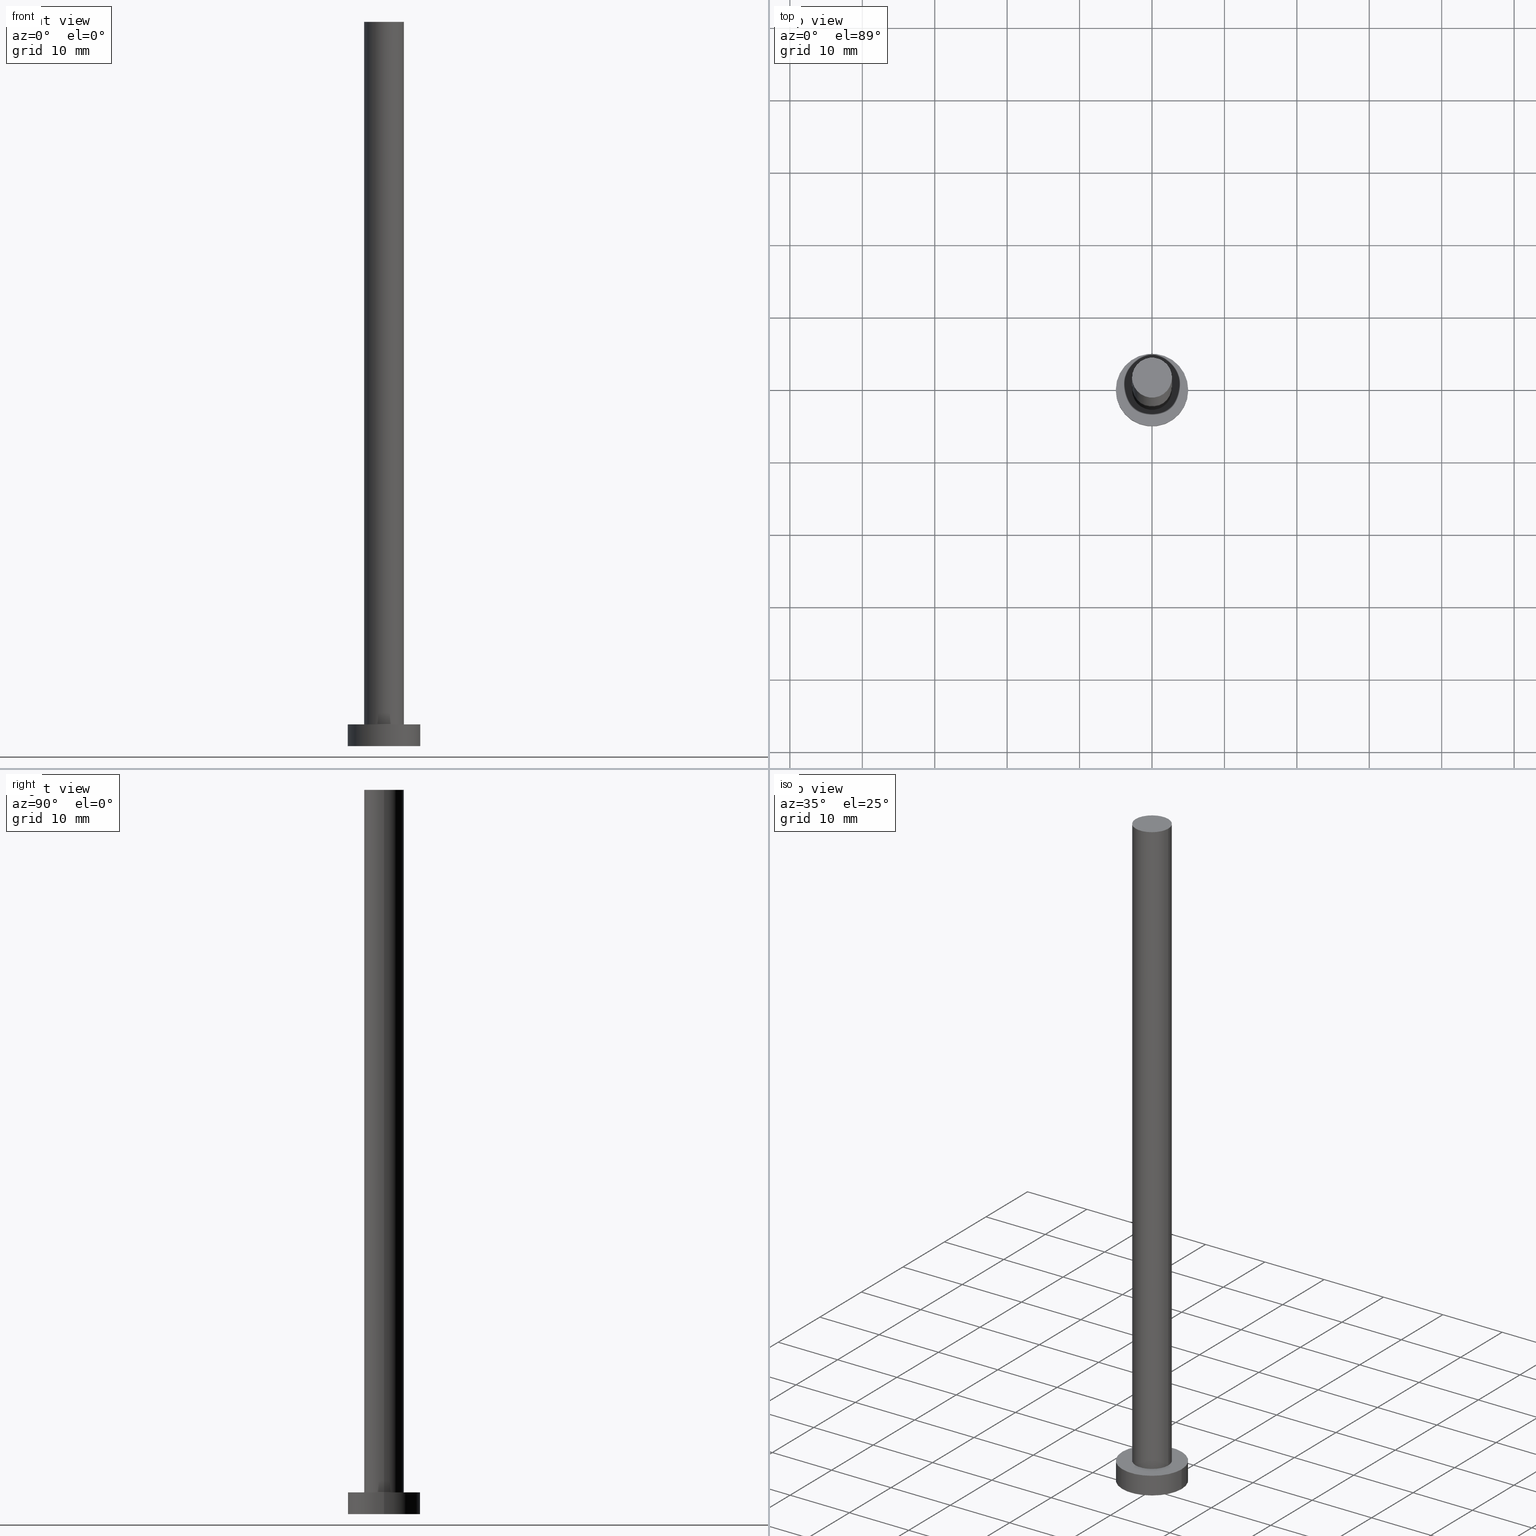
[diagram: canonical four-view strip — front | top / right | iso, engineering-drawing reading convention]
A machine part, canonical four-view strip (front | top / right | iso — engineering-drawing reading convention). The complete STEP part file that produces these views, byte-faithful:
ISO-10303-21;
HEADER;
FILE_DESCRIPTION (( 'STEP AP203' ),
    '1' );
FILE_NAME ('b51b.STEP',
    '2023-02-13T13:23:27',
    ( '' ),
    ( '' ),
    'SwSTEP 2.0',
    'SolidWorks 2019',
    '' );
FILE_SCHEMA (( 'CONFIG_CONTROL_DESIGN' ));
ENDSEC;

DATA;
#1 = FACE_OUTER_BOUND ( 'NONE', #43, .T. ) ;
#2 = PERSON_AND_ORGANIZATION ( #39, #182 ) ;
#3 = EDGE_LOOP ( 'NONE', ( #229, #173 ) ) ;
#4 = AXIS2_PLACEMENT_3D ( 'NONE', #221, #6, #237 ) ;
#5 = APPROVAL ( #249, 'NEUR�EN�' ) ;
#6 = DIRECTION ( 'NONE',  ( 0.000000000000000000, 0.000000000000000000, 1.000000000000000000 ) ) ;
#7 = CARTESIAN_POINT ( 'NONE',  ( 0.000000000000000000, 0.000000000000000000, 3.000000000000000000 ) ) ;
#8 = EDGE_CURVE ( 'NONE', #35, #216, #79, .T. ) ;
#9 = DIRECTION ( 'NONE',  ( 1.000000000000000000, 0.000000000000000000, 0.000000000000000000 ) ) ;
#10 = PERSON_AND_ORGANIZATION_ROLE ( 'design_owner' ) ;
#11 = AXIS2_PLACEMENT_3D ( 'NONE', #236, #238, #64 ) ;
#12 = AXIS2_PLACEMENT_3D ( 'NONE', #128, #248, #53 ) ;
#13 = EDGE_LOOP ( 'NONE', ( #38, #239 ) ) ;
#14 = DIRECTION ( 'NONE',  ( -1.000000000000000000, 0.000000000000000000, 0.000000000000000000 ) ) ;
#15 = ORIENTED_EDGE ( 'NONE', *, *, #232, .F. ) ;
#16 = APPROVAL_ROLE ( '' ) ;
#17 = CYLINDRICAL_SURFACE ( 'NONE', #32, 5.000000000000000000 ) ;
#18 = LINE ( 'NONE', #24, #226 ) ;
#19 = DIRECTION ( 'NONE',  ( 1.000000000000000000, 0.000000000000000000, -0.000000000000000000 ) ) ;
#20 = EDGE_CURVE ( 'NONE', #125, #81, #55, .T. ) ;
#21 = VECTOR ( 'NONE', #66, 1000.000000000000000 ) ;
#22 = MANIFOLD_SOLID_BREP ( 'P�idat vysunut�m3', #192 ) ;
#23 = SECURITY_CLASSIFICATION_LEVEL ( 'unclassified' ) ;
#24 = CARTESIAN_POINT ( 'NONE',  ( 5.000000000000000000, 6.123233995736766282E-16, 3.000000000000000000 ) ) ;
#25 = LINE ( 'NONE', #212, #89 ) ;
#26 = CC_DESIGN_PERSON_AND_ORGANIZATION_ASSIGNMENT ( #85, #168, ( #157 ) ) ;
#27 = DATE_AND_TIME ( #213, #114 ) ;
#28 = ADVANCED_BREP_SHAPE_REPRESENTATION ( 'b51b', ( #22, #4 ), #139 ) ;
#29 = DIRECTION ( 'NONE',  ( 1.000000000000000000, 0.000000000000000000, 0.000000000000000000 ) ) ;
#30 = PLANE ( 'NONE',  #112 ) ;
#31 = DIRECTION ( 'NONE',  ( -1.000000000000000000, 0.000000000000000000, 0.000000000000000000 ) ) ;
#32 = AXIS2_PLACEMENT_3D ( 'NONE', #251, #150, #52 ) ;
#33 = EDGE_CURVE ( 'NONE', #224, #81, #25, .T. ) ;
#34 = EDGE_LOOP ( 'NONE', ( #111, #63 ) ) ;
#35 = VERTEX_POINT ( 'NONE', #44 ) ;
#36 = DIRECTION ( 'NONE',  ( 0.000000000000000000, 0.000000000000000000, 1.000000000000000000 ) ) ;
#37 = AXIS2_PLACEMENT_3D ( 'NONE', #102, #215, #119 ) ;
#38 = ORIENTED_EDGE ( 'NONE', *, *, #50, .F. ) ;
#39 = PERSON ( 'NEUR�EN�', 'NEUR�EN�', 'NEUR�EN�', ('NEUR�EN�'), ('NEUR�EN�'), ('NEUR�EN�') ) ;
#40 = AXIS2_PLACEMENT_3D ( 'NONE', #179, #195, #29 ) ;
#41 = CARTESIAN_POINT ( 'NONE',  ( 0.000000000000000000, 0.000000000000000000, 3.000000000000000000 ) ) ;
#42 = APPROVAL_PERSON_ORGANIZATION ( #60, #98, #65 ) ;
#43 = EDGE_LOOP ( 'NONE', ( #130, #156, #120, #142 ) ) ;
#44 = CARTESIAN_POINT ( 'NONE',  ( 2.750000000000000000, 3.367778697655220519E-16, 3.000000000000000000 ) ) ;
#45 = CC_DESIGN_PERSON_AND_ORGANIZATION_ASSIGNMENT ( #56, #194, ( #146 ) ) ;
#46 = CARTESIAN_POINT ( 'NONE',  ( 0.000000000000000000, 0.000000000000000000, 3.000000000000000000 ) ) ;
#47 = ORIENTED_EDGE ( 'NONE', *, *, #87, .T. ) ;
#48 = APPROVAL_DATE_TIME ( #222, #98 ) ;
#49 = EDGE_LOOP ( 'NONE', ( #47, #151 ) ) ;
#50 = EDGE_CURVE ( 'NONE', #81, #125, #134, .T. ) ;
#51 = CARTESIAN_POINT ( 'NONE',  ( 2.750000000000000000, 3.367778697655220519E-16, 100.0000000000000000 ) ) ;
#52 = DIRECTION ( 'NONE',  ( -1.000000000000000000, 0.000000000000000000, 0.000000000000000000 ) ) ;
#53 = DIRECTION ( 'NONE',  ( 1.000000000000000000, 0.000000000000000000, 0.000000000000000000 ) ) ;
#54 = ADVANCED_FACE ( 'NONE', ( #62 ), #196, .T. ) ;
#55 = CIRCLE ( 'NONE', #40, 5.000000000000000000 ) ;
#56 = PERSON_AND_ORGANIZATION ( #39, #182 ) ;
#57 = PERSON_AND_ORGANIZATION_ROLE ( 'creator' ) ;
#58 = DIRECTION ( 'NONE',  ( 0.000000000000000000, 0.000000000000000000, 1.000000000000000000 ) ) ;
#59 = PERSON_AND_ORGANIZATION_ROLE ( 'classification_officer' ) ;
#60 = PERSON_AND_ORGANIZATION ( #39, #182 ) ;
#61 = PRODUCT_DEFINITION_SHAPE ( 'NONE', 'NONE',  #157 ) ;
#62 = FACE_OUTER_BOUND ( 'NONE', #253, .T. ) ;
#63 = ORIENTED_EDGE ( 'NONE', *, *, #8, .F. ) ;
#64 = DIRECTION ( 'NONE',  ( -1.000000000000000000, 0.000000000000000000, 0.000000000000000000 ) ) ;
#65 = APPROVAL_ROLE ( '' ) ;
#66 = DIRECTION ( 'NONE',  ( -0.000000000000000000, -0.000000000000000000, -1.000000000000000000 ) ) ;
#67 = COORDINATED_UNIVERSAL_TIME_OFFSET ( 1, 0, .AHEAD. ) ;
#68 = CC_DESIGN_PERSON_AND_ORGANIZATION_ASSIGNMENT ( #138, #10, ( #100 ) ) ;
#69 = COORDINATED_UNIVERSAL_TIME_OFFSET ( 1, 0, .AHEAD. ) ;
#70 = EDGE_CURVE ( 'NONE', #103, #125, #18, .T. ) ;
#71 = APPROVAL_PERSON_ORGANIZATION ( #110, #5, #187 ) ;
#72 = FACE_OUTER_BOUND ( 'NONE', #49, .T. ) ;
#73 = ORIENTED_EDGE ( 'NONE', *, *, #87, .F. ) ;
#74 = CARTESIAN_POINT ( 'NONE',  ( 0.000000000000000000, 0.000000000000000000, 100.0000000000000000 ) ) ;
#75 = CYLINDRICAL_SURFACE ( 'NONE', #233, 2.750000000000000000 ) ;
#76 = ADVANCED_FACE ( 'NONE', ( #96, #180 ), #30, .T. ) ;
#77 = EDGE_LOOP ( 'NONE', ( #189, #145, #220, #104 ) ) ;
#78 = DIRECTION ( 'NONE',  ( 1.000000000000000000, 0.000000000000000000, -0.000000000000000000 ) ) ;
#79 = CIRCLE ( 'NONE', #245, 2.750000000000000000 ) ;
#80 = AXIS2_PLACEMENT_3D ( 'NONE', #7, #219, #183 ) ;
#81 = VERTEX_POINT ( 'NONE', #155 ) ;
#82 = ADVANCED_FACE ( 'NONE', ( #1 ), #75, .T. ) ;
#83 = APPLICATION_PROTOCOL_DEFINITION ( 'international standard', 'config_control_design', 1994, #149 ) ;
#84 = DIRECTION ( 'NONE',  ( 0.000000000000000000, 0.000000000000000000, 1.000000000000000000 ) ) ;
#85 = PERSON_AND_ORGANIZATION ( #39, #182 ) ;
#86 = APPROVAL_PERSON_ORGANIZATION ( #204, #197, #16 ) ;
#87 = EDGE_CURVE ( 'NONE', #200, #147, #143, .T. ) ;
#88 = DIRECTION ( 'NONE',  ( 0.000000000000000000, 0.000000000000000000, 1.000000000000000000 ) ) ;
#89 = VECTOR ( 'NONE', #158, 1000.000000000000000 ) ;
#90 = DATE_AND_TIME ( #171, #172 ) ;
#91 = AXIS2_PLACEMENT_3D ( 'NONE', #46, #163, #105 ) ;
#92 = CARTESIAN_POINT ( 'NONE',  ( 2.750000000000000000, 3.367778697655220519E-16, 100.0000000000000000 ) ) ;
#93 = APPROVAL_DATE_TIME ( #209, #197 ) ;
#94 =( NAMED_UNIT ( * ) PLANE_ANGLE_UNIT ( ) SI_UNIT ( $, .RADIAN. ) );
#95 = CC_DESIGN_DATE_AND_TIME_ASSIGNMENT ( #90, #129, ( #157 ) ) ;
#96 = FACE_BOUND ( 'NONE', #34, .T. ) ;
#97 = CARTESIAN_POINT ( 'NONE',  ( -2.750000000000000000, 0.000000000000000000, 100.0000000000000000 ) ) ;
#98 = APPROVAL ( #106, 'NEUR�EN�' ) ;
#99 = CC_DESIGN_APPROVAL ( #197, ( #146 ) ) ;
#100 = PRODUCT ( 'b51b', 'b51b', '', ( #240 ) ) ;
#101 = ORIENTED_EDGE ( 'NONE', *, *, #185, .T. ) ;
#102 = CARTESIAN_POINT ( 'NONE',  ( 0.000000000000000000, 0.000000000000000000, 0.000000000000000000 ) ) ;
#103 = VERTEX_POINT ( 'NONE', #141 ) ;
#104 = ORIENTED_EDGE ( 'NONE', *, *, #50, .T. ) ;
#105 = DIRECTION ( 'NONE',  ( 1.000000000000000000, 0.000000000000000000, 0.000000000000000000 ) ) ;
#106 = APPROVAL_STATUS ( 'not_yet_approved' ) ;
#107 = PLANE ( 'NONE',  #188 ) ;
#108 = APPROVAL_STATUS ( 'not_yet_approved' ) ;
#109 = LOCAL_TIME ( 14, 23, 27.00000000000000000, #186 ) ;
#110 = PERSON_AND_ORGANIZATION ( #39, #182 ) ;
#111 = ORIENTED_EDGE ( 'NONE', *, *, #185, .F. ) ;
#112 = AXIS2_PLACEMENT_3D ( 'NONE', #199, #58, #78 ) ;
#113 = CARTESIAN_POINT ( 'NONE',  ( 0.000000000000000000, 0.000000000000000000, 3.000000000000000000 ) ) ;
#114 = LOCAL_TIME ( 14, 23, 27.00000000000000000, #136 ) ;
#115 = DIRECTION ( 'NONE',  ( -0.000000000000000000, -0.000000000000000000, -1.000000000000000000 ) ) ;
#116 = ORIENTED_EDGE ( 'NONE', *, *, #33, .F. ) ;
#117 = PERSON_AND_ORGANIZATION ( #39, #182 ) ;
#118 = AXIS2_PLACEMENT_3D ( 'NONE', #243, #84, #159 ) ;
#119 = DIRECTION ( 'NONE',  ( 1.000000000000000000, 0.000000000000000000, 0.000000000000000000 ) ) ;
#120 = ORIENTED_EDGE ( 'NONE', *, *, #8, .T. ) ;
#121 = DIRECTION ( 'NONE',  ( -0.000000000000000000, -0.000000000000000000, -1.000000000000000000 ) ) ;
#122 = SHAPE_DEFINITION_REPRESENTATION ( #61, #28 ) ;
#123 = CARTESIAN_POINT ( 'NONE',  ( -2.750000000000000000, 0.000000000000000000, 100.0000000000000000 ) ) ;
#124 = CARTESIAN_POINT ( 'NONE',  ( 0.000000000000000000, 0.000000000000000000, 0.000000000000000000 ) ) ;
#125 = VERTEX_POINT ( 'NONE', #223 ) ;
#126 = CIRCLE ( 'NONE', #12, 2.750000000000000000 ) ;
#127 = ADVANCED_FACE ( 'NONE', ( #225 ), #107, .F. ) ;
#128 = CARTESIAN_POINT ( 'NONE',  ( 0.000000000000000000, 0.000000000000000000, 100.0000000000000000 ) ) ;
#129 = DATE_TIME_ROLE ( 'creation_date' ) ;
#130 = ORIENTED_EDGE ( 'NONE', *, *, #242, .F. ) ;
#131 = CIRCLE ( 'NONE', #91, 5.000000000000000000 ) ;
#132 = CALENDAR_DATE ( 2023, 13, 2 ) ;
#133 = DIRECTION ( 'NONE',  ( -0.000000000000000000, -0.000000000000000000, -1.000000000000000000 ) ) ;
#134 = CIRCLE ( 'NONE', #37, 5.000000000000000000 ) ;
#135 = CIRCLE ( 'NONE', #218, 5.000000000000000000 ) ;
#136 = COORDINATED_UNIVERSAL_TIME_OFFSET ( 1, 0, .AHEAD. ) ;
#137 = DIRECTION ( 'NONE',  ( -0.000000000000000000, -0.000000000000000000, -1.000000000000000000 ) ) ;
#138 = PERSON_AND_ORGANIZATION ( #39, #182 ) ;
#139 =( GEOMETRIC_REPRESENTATION_CONTEXT ( 3 ) GLOBAL_UNCERTAINTY_ASSIGNED_CONTEXT ( ( #203 ) ) GLOBAL_UNIT_ASSIGNED_CONTEXT ( ( #184, #94, #201 ) ) REPRESENTATION_CONTEXT ( 'NONE', 'WORKASPACE' ) );
#140 = CC_DESIGN_DATE_AND_TIME_ASSIGNMENT ( #27, #235, ( #148 ) ) ;
#141 = CARTESIAN_POINT ( 'NONE',  ( 5.000000000000000000, 6.123233995736766282E-16, 3.000000000000000000 ) ) ;
#142 = ORIENTED_EDGE ( 'NONE', *, *, #144, .F. ) ;
#143 = CIRCLE ( 'NONE', #118, 2.750000000000000000 ) ;
#144 = EDGE_CURVE ( 'NONE', #200, #216, #174, .T. ) ;
#145 = ORIENTED_EDGE ( 'NONE', *, *, #214, .F. ) ;
#146 = PRODUCT_DEFINITION_FORMATION_WITH_SPECIFIED_SOURCE ( 'LIBOVOLN�', '', #100, .NOT_KNOWN. ) ;
#147 = VERTEX_POINT ( 'NONE', #92 ) ;
#148 = SECURITY_CLASSIFICATION ( '', '', #23 ) ;
#149 = APPLICATION_CONTEXT ( 'configuration controlled 3d designs of mechanical parts and assemblies' ) ;
#150 = DIRECTION ( 'NONE',  ( -0.000000000000000000, -0.000000000000000000, -1.000000000000000000 ) ) ;
#151 = ORIENTED_EDGE ( 'NONE', *, *, #242, .T. ) ;
#152 = PRODUCT_RELATED_PRODUCT_CATEGORY ( 'detail', '', ( #100 ) ) ;
#153 = FACE_OUTER_BOUND ( 'NONE', #206, .T. ) ;
#154 = CARTESIAN_POINT ( 'NONE',  ( 0.000000000000000000, 0.000000000000000000, 100.0000000000000000 ) ) ;
#155 = CARTESIAN_POINT ( 'NONE',  ( -5.000000000000000000, 0.000000000000000000, 0.000000000000000000 ) ) ;
#156 = ORIENTED_EDGE ( 'NONE', *, *, #232, .T. ) ;
#157 = PRODUCT_DEFINITION ( 'NEZN�M�', '', #146, #169 ) ;
#158 = DIRECTION ( 'NONE',  ( -0.000000000000000000, -0.000000000000000000, -1.000000000000000000 ) ) ;
#159 = DIRECTION ( 'NONE',  ( 1.000000000000000000, 0.000000000000000000, 0.000000000000000000 ) ) ;
#160 = LINE ( 'NONE', #51, #21 ) ;
#161 = APPLICATION_CONTEXT ( 'configuration controlled 3d designs of mechanical parts and assemblies' ) ;
#162 = CARTESIAN_POINT ( 'NONE',  ( -5.000000000000000000, 0.000000000000000000, 3.000000000000000000 ) ) ;
#163 = DIRECTION ( 'NONE',  ( 0.000000000000000000, 0.000000000000000000, 1.000000000000000000 ) ) ;
#164 = APPROVAL_DATE_TIME ( #231, #5 ) ;
#165 = AXIS2_PLACEMENT_3D ( 'NONE', #113, #121, #31 ) ;
#166 = FACE_OUTER_BOUND ( 'NONE', #77, .T. ) ;
#167 = CC_DESIGN_APPROVAL ( #5, ( #157 ) ) ;
#168 = PERSON_AND_ORGANIZATION_ROLE ( 'creator' ) ;
#169 = DESIGN_CONTEXT ( 'detailed design', #161, 'design' ) ;
#170 = COORDINATED_UNIVERSAL_TIME_OFFSET ( 1, 0, .AHEAD. ) ;
#171 = CALENDAR_DATE ( 2023, 13, 2 ) ;
#172 = LOCAL_TIME ( 14, 23, 27.00000000000000000, #69 ) ;
#173 = ORIENTED_EDGE ( 'NONE', *, *, #230, .T. ) ;
#174 = LINE ( 'NONE', #97, #205 ) ;
#175 = CIRCLE ( 'NONE', #80, 2.750000000000000000 ) ;
#176 = ORIENTED_EDGE ( 'NONE', *, *, #144, .T. ) ;
#177 = CC_DESIGN_APPROVAL ( #98, ( #148 ) ) ;
#178 = ADVANCED_FACE ( 'NONE', ( #153 ), #193, .T. ) ;
#179 = CARTESIAN_POINT ( 'NONE',  ( 0.000000000000000000, 0.000000000000000000, 0.000000000000000000 ) ) ;
#180 = FACE_OUTER_BOUND ( 'NONE', #3, .T. ) ;
#181 = CARTESIAN_POINT ( 'NONE',  ( 0.000000000000000000, 0.000000000000000000, 3.000000000000000000 ) ) ;
#182 = ORGANIZATION ( 'NEUR�EN�', 'NEUR�EN�', '' ) ;
#183 = DIRECTION ( 'NONE',  ( 1.000000000000000000, 0.000000000000000000, 0.000000000000000000 ) ) ;
#184 =( LENGTH_UNIT ( ) NAMED_UNIT ( * ) SI_UNIT ( .MILLI., .METRE. ) );
#185 = EDGE_CURVE ( 'NONE', #216, #35, #175, .T. ) ;
#186 = COORDINATED_UNIVERSAL_TIME_OFFSET ( 1, 0, .AHEAD. ) ;
#187 = APPROVAL_ROLE ( '' ) ;
#188 = AXIS2_PLACEMENT_3D ( 'NONE', #124, #36, #19 ) ;
#189 = ORIENTED_EDGE ( 'NONE', *, *, #70, .F. ) ;
#190 = CALENDAR_DATE ( 2023, 13, 2 ) ;
#191 = DIRECTION ( 'NONE',  ( 1.000000000000000000, 0.000000000000000000, -0.000000000000000000 ) ) ;
#192 = CLOSED_SHELL ( 'NONE', ( #82, #54, #252, #76, #127, #178, #247 ) ) ;
#193 = CYLINDRICAL_SURFACE ( 'NONE', #11, 2.750000000000000000 ) ;
#194 = PERSON_AND_ORGANIZATION_ROLE ( 'design_supplier' ) ;
#195 = DIRECTION ( 'NONE',  ( 0.000000000000000000, 0.000000000000000000, 1.000000000000000000 ) ) ;
#196 = CYLINDRICAL_SURFACE ( 'NONE', #165, 5.000000000000000000 ) ;
#197 = APPROVAL ( #108, 'NEUR�EN�' ) ;
#198 = ORIENTED_EDGE ( 'NONE', *, *, #230, .F. ) ;
#199 = CARTESIAN_POINT ( 'NONE',  ( 0.000000000000000000, 0.000000000000000000, 3.000000000000000000 ) ) ;
#200 = VERTEX_POINT ( 'NONE', #123 ) ;
#201 =( NAMED_UNIT ( * ) SI_UNIT ( $, .STERADIAN. ) SOLID_ANGLE_UNIT ( ) );
#202 = ORIENTED_EDGE ( 'NONE', *, *, #20, .T. ) ;
#203 = UNCERTAINTY_MEASURE_WITH_UNIT (LENGTH_MEASURE( 1.000000000000000082E-05 ), #184, 'distance_accuracy_value', 'NONE');
#204 = PERSON_AND_ORGANIZATION ( #39, #182 ) ;
#205 = VECTOR ( 'NONE', #133, 1000.000000000000000 ) ;
#206 = EDGE_LOOP ( 'NONE', ( #15, #73, #176, #101 ) ) ;
#207 = LOCAL_TIME ( 14, 23, 27.00000000000000000, #67 ) ;
#208 = DIRECTION ( 'NONE',  ( 0.000000000000000000, 0.000000000000000000, 1.000000000000000000 ) ) ;
#209 = DATE_AND_TIME ( #132, #211 ) ;
#210 = CC_DESIGN_PERSON_AND_ORGANIZATION_ASSIGNMENT ( #2, #59, ( #148 ) ) ;
#211 = LOCAL_TIME ( 14, 23, 27.00000000000000000, #170 ) ;
#212 = CARTESIAN_POINT ( 'NONE',  ( -5.000000000000000000, 0.000000000000000000, 3.000000000000000000 ) ) ;
#213 = CALENDAR_DATE ( 2023, 13, 2 ) ;
#214 = EDGE_CURVE ( 'NONE', #224, #103, #131, .T. ) ;
#215 = DIRECTION ( 'NONE',  ( 0.000000000000000000, 0.000000000000000000, 1.000000000000000000 ) ) ;
#216 = VERTEX_POINT ( 'NONE', #228 ) ;
#217 = APPLICATION_PROTOCOL_DEFINITION ( 'international standard', 'config_control_design', 1994, #161 ) ;
#218 = AXIS2_PLACEMENT_3D ( 'NONE', #181, #244, #9 ) ;
#219 = DIRECTION ( 'NONE',  ( 0.000000000000000000, 0.000000000000000000, 1.000000000000000000 ) ) ;
#220 = ORIENTED_EDGE ( 'NONE', *, *, #33, .T. ) ;
#221 = CARTESIAN_POINT ( 'NONE',  ( 0.000000000000000000, 0.000000000000000000, 0.000000000000000000 ) ) ;
#222 = DATE_AND_TIME ( #227, #207 ) ;
#223 = CARTESIAN_POINT ( 'NONE',  ( 5.000000000000000000, 6.123233995736766282E-16, 0.000000000000000000 ) ) ;
#224 = VERTEX_POINT ( 'NONE', #162 ) ;
#225 = FACE_OUTER_BOUND ( 'NONE', #13, .T. ) ;
#226 = VECTOR ( 'NONE', #137, 1000.000000000000000 ) ;
#227 = CALENDAR_DATE ( 2023, 13, 2 ) ;
#228 = CARTESIAN_POINT ( 'NONE',  ( -2.750000000000000000, 0.000000000000000000, 3.000000000000000000 ) ) ;
#229 = ORIENTED_EDGE ( 'NONE', *, *, #214, .T. ) ;
#230 = EDGE_CURVE ( 'NONE', #103, #224, #135, .T. ) ;
#231 = DATE_AND_TIME ( #190, #109 ) ;
#232 = EDGE_CURVE ( 'NONE', #147, #35, #160, .T. ) ;
#233 = AXIS2_PLACEMENT_3D ( 'NONE', #154, #115, #14 ) ;
#234 = CC_DESIGN_SECURITY_CLASSIFICATION ( #148, ( #146 ) ) ;
#235 = DATE_TIME_ROLE ( 'classification_date' ) ;
#236 = CARTESIAN_POINT ( 'NONE',  ( 0.000000000000000000, 0.000000000000000000, 100.0000000000000000 ) ) ;
#237 = DIRECTION ( 'NONE',  ( 1.000000000000000000, 0.000000000000000000, 0.000000000000000000 ) ) ;
#238 = DIRECTION ( 'NONE',  ( -0.000000000000000000, -0.000000000000000000, -1.000000000000000000 ) ) ;
#239 = ORIENTED_EDGE ( 'NONE', *, *, #20, .F. ) ;
#240 = MECHANICAL_CONTEXT ( 'NONE', #149, 'mechanical' ) ;
#241 = ORIENTED_EDGE ( 'NONE', *, *, #70, .T. ) ;
#242 = EDGE_CURVE ( 'NONE', #147, #200, #126, .T. ) ;
#243 = CARTESIAN_POINT ( 'NONE',  ( 0.000000000000000000, 0.000000000000000000, 100.0000000000000000 ) ) ;
#244 = DIRECTION ( 'NONE',  ( 0.000000000000000000, 0.000000000000000000, 1.000000000000000000 ) ) ;
#245 = AXIS2_PLACEMENT_3D ( 'NONE', #41, #208, #254 ) ;
#246 = AXIS2_PLACEMENT_3D ( 'NONE', #74, #88, #191 ) ;
#247 = ADVANCED_FACE ( 'NONE', ( #72 ), #250, .T. ) ;
#248 = DIRECTION ( 'NONE',  ( 0.000000000000000000, 0.000000000000000000, 1.000000000000000000 ) ) ;
#249 = APPROVAL_STATUS ( 'not_yet_approved' ) ;
#250 = PLANE ( 'NONE',  #246 ) ;
#251 = CARTESIAN_POINT ( 'NONE',  ( 0.000000000000000000, 0.000000000000000000, 3.000000000000000000 ) ) ;
#252 = ADVANCED_FACE ( 'NONE', ( #166 ), #17, .T. ) ;
#253 = EDGE_LOOP ( 'NONE', ( #198, #241, #202, #116 ) ) ;
#254 = DIRECTION ( 'NONE',  ( 1.000000000000000000, 0.000000000000000000, 0.000000000000000000 ) ) ;
#255 = CC_DESIGN_PERSON_AND_ORGANIZATION_ASSIGNMENT ( #117, #57, ( #146 ) ) ;
ENDSEC;
END-ISO-10303-21;
